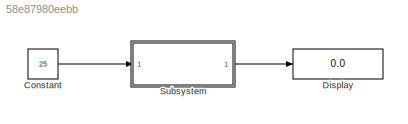
MODEL slx_58e87980eebb
KIND model
CONFIG AbsTol = auto
CONFIG EnableMultiTasking = off
CONFIG FixedStep = auto
CONFIG MaxStep = auto
CONFIG MinStep = auto
CONFIG RelTol = 1e-3
CONFIG SampleTimeConstraint = Unconstrained
CONFIG SolverName = VariableStepAuto
CONFIG StartTime = 0.0
CONFIG StopTime = 10.0
BLOCK [Constant] Constant
  Value = 25
BLOCK [Display] Display
  Decimation = 1
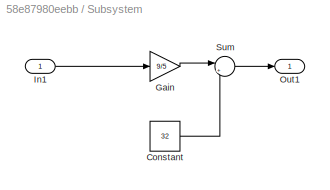
BLOCK [SubSystem] Subsystem
BLOCK [Constant] Subsystem/Constant
  Value = 32
BLOCK [Gain] Subsystem/Gain
  Gain = 9/5
BLOCK [Inport] Subsystem/In1
BLOCK [Outport] Subsystem/Out1
BLOCK [Sum] Subsystem/Sum
  Inputs = |++
LINE Constant:1 -> Subsystem:1
LINE Subsystem/Constant:1 -> Subsystem/Sum:2
LINE Subsystem/Gain:1 -> Subsystem/Sum:1
LINE Subsystem/In1:1 -> Subsystem/Gain:1
LINE Subsystem/Sum:1 -> Subsystem/Out1:1
LINE Subsystem:1 -> Display:1
